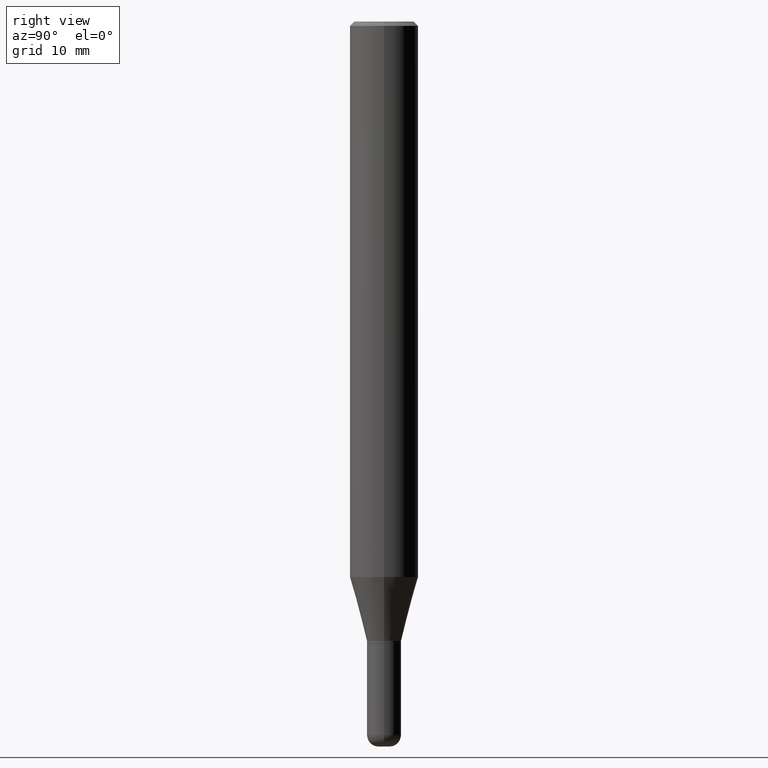
[diagram: clean part render]
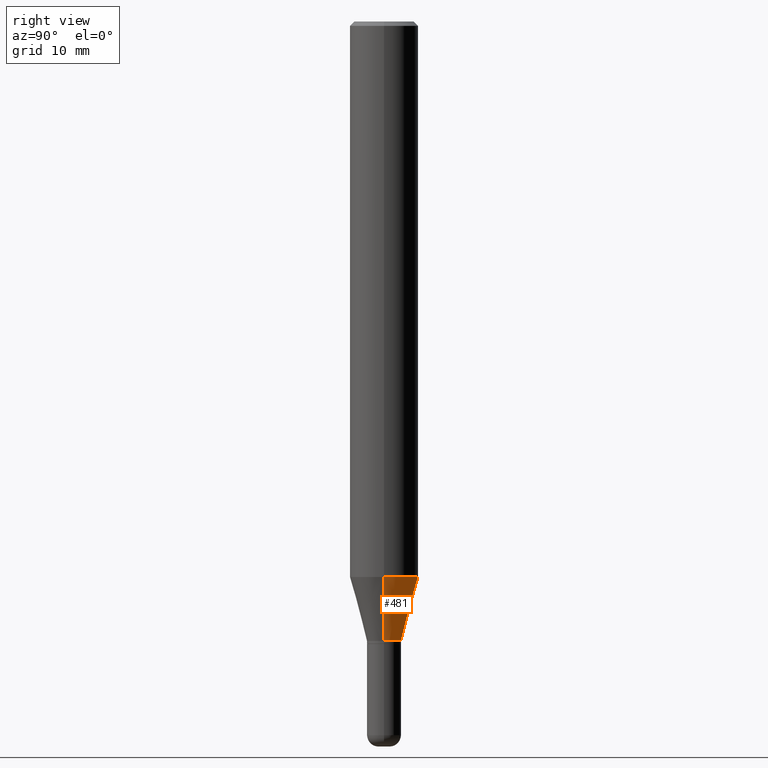
[diagram: same view with one face highlighted and labeled with its STEP entity id]
A machine part, right view. The second image highlights one B-rep face of the part: STEP entity #481.
In plain terms, the highlighted conical surface has half-angle 15 deg.
Its self-contained STEP definition (entity closure, byte-faithful):
#19 = CARTESIAN_POINT ( 'NONE',  ( -0.05905000000000002608, -7.037181209900967462E-15, -2.135699999999999932 ) ) ;
#37 = FACE_OUTER_BOUND ( 'NONE', #70, .T. ) ;
#70 = EDGE_LOOP ( 'NONE', ( #305, #251, #258, #505 ) ) ;
#104 = DIRECTION ( 'NONE',  ( 1.000000000000000000, -6.982962677686265133E-15, 0.000000000000000000 ) ) ;
#108 = CARTESIAN_POINT ( 'NONE',  ( -0.05905000000000002608, -6.442671327891926197E-15, -2.135699999999999932 ) ) ;
#117 = EDGE_CURVE ( 'NONE', #147, #417, #280, .T. ) ;
#119 = DIRECTION ( 'NONE',  ( 1.000000000000000000, -6.982962677686269866E-15, 0.000000000000000000 ) ) ;
#136 = CARTESIAN_POINT ( 'NONE',  ( 4.683861182530489821E-29, -6.687312416815562340E-15, -1.915322399813057963 ) ) ;
#146 = VERTEX_POINT ( 'NONE', #513 ) ;
#147 = VERTEX_POINT ( 'NONE', #314 ) ;
#192 = EDGE_CURVE ( 'NONE', #147, #261, #286, .T. ) ;
#245 = EDGE_CURVE ( 'NONE', #417, #146, #263, .T. ) ;
#251 = ORIENTED_EDGE ( 'NONE', *, *, #245, .T. ) ;
#258 = ORIENTED_EDGE ( 'NONE', *, *, #276, .F. ) ;
#261 = VERTEX_POINT ( 'NONE', #448 ) ;
#263 = LINE ( 'NONE', #19, #323 ) ;
#276 = EDGE_CURVE ( 'NONE', #261, #146, #406, .T. ) ;
#280 = CIRCLE ( 'NONE', #416, 0.05905000000000002608 ) ;
#286 = LINE ( 'NONE', #293, #482 ) ;
#289 = DIRECTION ( 'NONE',  ( 0.2588190451025207395, 1.565188264969626109E-15, 0.9659258262890682012 ) ) ;
#293 = CARTESIAN_POINT ( 'NONE',  ( 0.05905000000000002608, -7.869100641484681875E-15, -2.135699999999999932 ) ) ;
#305 = ORIENTED_EDGE ( 'NONE', *, *, #117, .T. ) ;
#306 = CARTESIAN_POINT ( 'NONE',  ( 5.222787729369597184E-29, -7.456756695367306166E-15, -2.135699999999999932 ) ) ;
#314 = CARTESIAN_POINT ( 'NONE',  ( 0.05905000000000002608, -7.869100641484681875E-15, -2.135699999999999932 ) ) ;
#323 = VECTOR ( 'NONE', #486, 39.37007874015748854 ) ;
#374 = DIRECTION ( 'NONE',  ( 1.000000000000000000, -6.982962677686269866E-15, 0.000000000000000000 ) ) ;
#406 = CIRCLE ( 'NONE', #457, 0.1180999999999999966 ) ;
#416 = AXIS2_PLACEMENT_3D ( 'NONE', #511, #431, #119 ) ;
#417 = VERTEX_POINT ( 'NONE', #108 ) ;
#431 = DIRECTION ( 'NONE',  ( -2.445468806185136597E-29, 3.491481338843145583E-15, 1.000000000000000000 ) ) ;
#444 = CONICAL_SURFACE ( 'NONE', #503, 0.05905000000000002608, 0.2617993877991494633 ) ;
#448 = CARTESIAN_POINT ( 'NONE',  ( 0.1180999999999999966, -7.512000309050311391E-15, -1.915322399813057963 ) ) ;
#449 = DIRECTION ( 'NONE',  ( -2.445468806185136597E-29, 3.491481338843145583E-15, 1.000000000000000000 ) ) ;
#457 = AXIS2_PLACEMENT_3D ( 'NONE', #136, #449, #104 ) ;
#481 = ADVANCED_FACE ( 'NONE', ( #37 ), #444, .T. ) ;
#482 = VECTOR ( 'NONE', #289, 39.37007874015748854 ) ;
#486 = DIRECTION ( 'NONE',  ( -0.2588190451025207395, 5.211531920934546309E-15, 0.9659258262890682012 ) ) ;
#503 = AXIS2_PLACEMENT_3D ( 'NONE', #306, #506, #374 ) ;
#505 = ORIENTED_EDGE ( 'NONE', *, *, #192, .F. ) ;
#506 = DIRECTION ( 'NONE',  ( -2.445468806185136597E-29, 3.491481338843145583E-15, 1.000000000000000000 ) ) ;
#511 = CARTESIAN_POINT ( 'NONE',  ( 5.222787729369597184E-29, -7.456756695367306166E-15, -2.135699999999999932 ) ) ;
#513 = CARTESIAN_POINT ( 'NONE',  ( -0.1180999999999999966, -5.848161445882884932E-15, -1.915322399813057963 ) ) ;